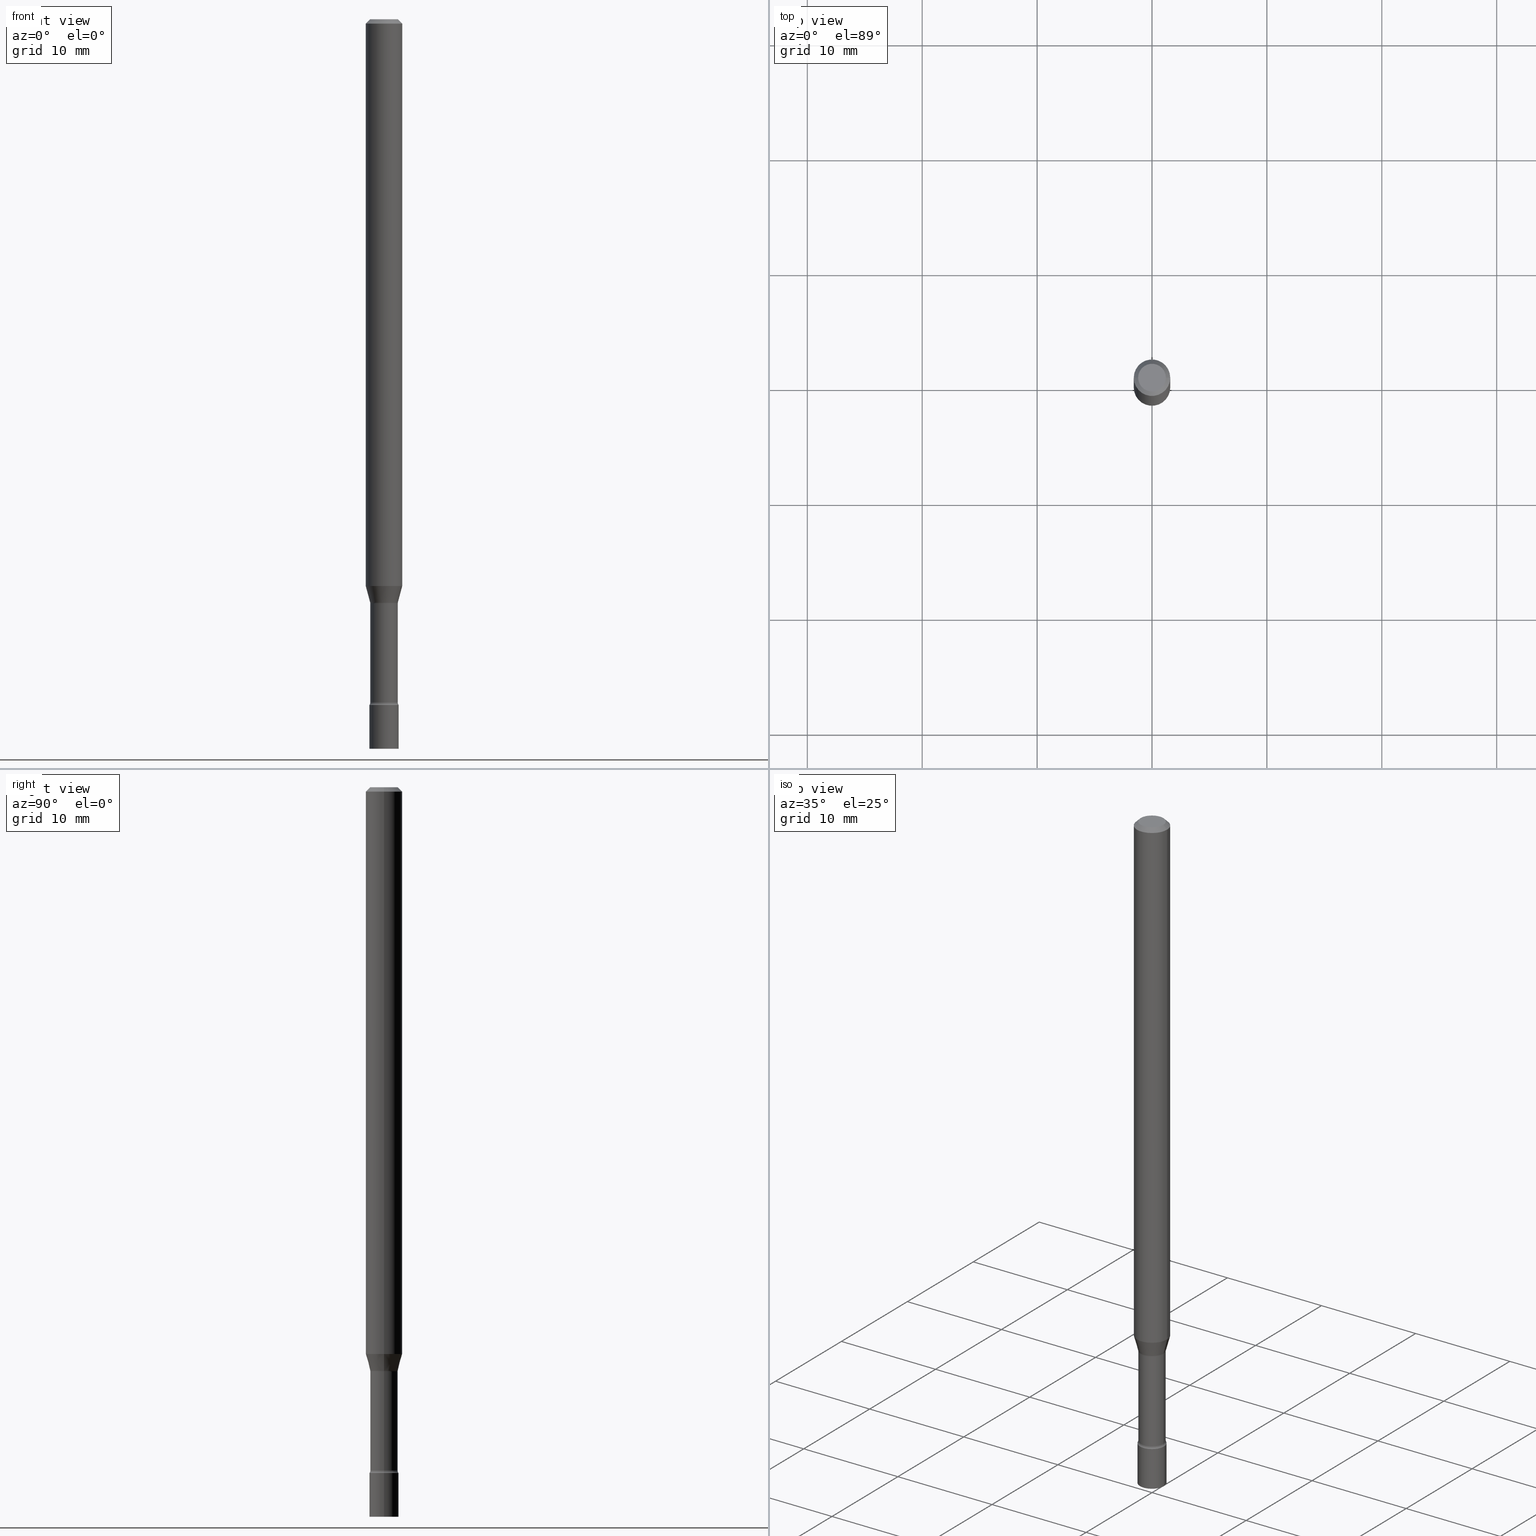
[diagram: canonical four-view strip — front | top / right | iso, engineering-drawing reading convention]
A machine part, canonical four-view strip (front | top / right | iso — engineering-drawing reading convention). The complete STEP part file that produces these views, byte-faithful:
ISO-10303-21;
HEADER;
FILE_DESCRIPTION (( 'STEP AP203' ),
    '1' );
FILE_NAME ('09761.STEP',
    '2024-03-09T01:47:23',
    ( '' ),
    ( '' ),
    'SwSTEP 2.0',
    'SolidWorks 2023',
    '' );
FILE_SCHEMA (( 'CONFIG_CONTROL_DESIGN' ));
ENDSEC;

DATA;
#1 = DIRECTION ( 'NONE',  ( -2.445468806185136597E-29, 3.491481338843145583E-15, 1.000000000000000000 ) ) ;
#2 = EDGE_LOOP ( 'NONE', ( #295, #379, #71, #81 ) ) ;
#3 = PRODUCT_DEFINITION_SHAPE ( 'NONE', 'NONE',  #40 ) ;
#4 = DIRECTION ( 'NONE',  ( 1.000000000000000000, -6.982962677686269866E-15, 0.000000000000000000 ) ) ;
#5 = ORIENTED_EDGE ( 'NONE', *, *, #508, .T. ) ;
#6 = ADVANCED_FACE ( 'NONE', ( #167 ), #199, .T. ) ;
#7 = CIRCLE ( 'NONE', #293, 0.05000000000000000278 ) ;
#8 = PRODUCT_DEFINITION_FORMATION_WITH_SPECIFIED_SOURCE ( 'ANY', '', #252, .NOT_KNOWN. ) ;
#9 = CARTESIAN_POINT ( 'NONE',  ( -0.04749999999999999362, 3.578768372314209027E-16, -2.891391092787141902E-17 ) ) ;
#10 = ORIENTED_EDGE ( 'NONE', *, *, #79, .F. ) ;
#11 = PERSON_AND_ORGANIZATION_ROLE ( 'creator' ) ;
#12 = DIRECTION ( 'NONE',  ( 0.2588190451025211281, 1.565188264969622954E-15, 0.9659258262890679791 ) ) ;
#13 = CARTESIAN_POINT ( 'NONE',  ( 4.895766893511868006E-29, -6.989857611264368100E-15, -2.001974787463811190 ) ) ;
#14 = CARTESIAN_POINT ( 'NONE',  ( 0.06250000000000000000, -7.217426865912943982E-15, -1.942153212482682578 ) ) ;
#15 = APPROVAL_DATE_TIME ( #497, #324 ) ;
#16 = EDGE_CURVE ( 'NONE', #489, #515, #391, .T. ) ;
#17 = DIRECTION ( 'NONE',  ( 1.000000000000000000, -6.982962677686269866E-15, 0.000000000000000000 ) ) ;
#18 = APPROVAL_ROLE ( '' ) ;
#19 = DIRECTION ( 'NONE',  ( 2.445468806185136597E-29, -3.491481338843145583E-15, -1.000000000000000000 ) ) ;
#20 = DIRECTION ( 'NONE',  ( 1.000000000000000000, -6.982962677686262766E-15, 0.000000000000000000 ) ) ;
#21 = ORIENTED_EDGE ( 'NONE', *, *, #203, .F. ) ;
#22 = ADVANCED_FACE ( 'NONE', ( #414 ), #274, .T. ) ;
#23 = DATE_TIME_ROLE ( 'classification_date' ) ;
#24 = CLOSED_SHELL ( 'NONE', ( #238, #60, #356, #185, #132, #162, #22, #478, #6, #109, #95, #140, #372, #428 ) ) ;
#25 = DIRECTION ( 'NONE',  ( -1.000000000000000000, 7.105427357600974249E-15, 0.000000000000000000 ) ) ;
#26 = DIRECTION ( 'NONE',  ( 1.000000000000000000, -6.982962677686274599E-15, 0.000000000000000000 ) ) ;
#27 = CARTESIAN_POINT ( 'NONE',  ( 0.05000000000000000278, -8.554129280165705119E-15, -2.349999999999999645 ) ) ;
#28 = PERSON_AND_ORGANIZATION_ROLE ( 'design_supplier' ) ;
#29 = DIRECTION ( 'NONE',  ( 1.000000000000000000, -6.982962677686267499E-15, 4.883557194083112901E-29 ) ) ;
#30 = AXIS2_PLACEMENT_3D ( 'NONE', #351, #263, #479 ) ;
#31 = CC_DESIGN_DATE_AND_TIME_ASSIGNMENT ( #168, #160, ( #40 ) ) ;
#32 = VERTEX_POINT ( 'NONE', #374 ) ;
#33 = DIRECTION ( 'NONE',  ( 7.105427357601001859E-15, 1.000000000000000000, -3.491481338843145583E-15 ) ) ;
#34 = ORIENTED_EDGE ( 'NONE', *, *, #73, .T. ) ;
#35 = DIRECTION ( 'NONE',  ( 1.000000000000000000, -6.982962677686266711E-15, 4.876176775795936353E-29 ) ) ;
#36 = EDGE_CURVE ( 'NONE', #32, #397, #54, .T. ) ;
#37 = FACE_OUTER_BOUND ( 'NONE', #178, .T. ) ;
#38 = AXIS2_PLACEMENT_3D ( 'NONE', #59, #288, #290 ) ;
#39 = AXIS2_PLACEMENT_3D ( 'NONE', #94, #204, #201 ) ;
#40 = PRODUCT_DEFINITION ( 'UNKNOWN', '', #8, #311 ) ;
#41 = CARTESIAN_POINT ( 'NONE',  ( -0.06250000000000000000, 3.840629472727443437E-16, -0.01500000000000003067 ) ) ;
#42 = DIRECTION ( 'NONE',  ( -6.982962677686266711E-15, -1.000000000000000000, 3.491481338843145583E-15 ) ) ;
#43 = ORIENTED_EDGE ( 'NONE', *, *, #459, .T. ) ;
#44 = CARTESIAN_POINT ( 'NONE',  ( 0.000000000000000000, 0.000000000000000000, 0.000000000000000000 ) ) ;
#45 = ORIENTED_EDGE ( 'NONE', *, *, #396, .T. ) ;
#46 = EDGE_CURVE ( 'NONE', #107, #489, #165, .T. ) ;
#47 = VECTOR ( 'NONE', #57, 39.37007874015748143 ) ;
#48 = AXIS2_PLACEMENT_3D ( 'NONE', #233, #42, #269 ) ;
#49 = PERSON_AND_ORGANIZATION_ROLE ( 'design_owner' ) ;
#50 = CARTESIAN_POINT ( 'NONE',  ( 0.05000000000000000278, -3.491481338843133848E-16, 2.438088387897968247E-30 ) ) ;
#51 = DIRECTION ( 'NONE',  ( -2.445468806185136597E-29, 3.491481338843145583E-15, 1.000000000000000000 ) ) ;
#52 = APPROVAL ( #127, 'UNSPECIFIED' ) ;
#53 = DIRECTION ( 'NONE',  ( 1.000000000000000000, -6.982962677686266711E-15, 4.876176775795936353E-29 ) ) ;
#54 = CIRCLE ( 'NONE', #345, 0.04699999999999998623 ) ;
#55 = CIRCLE ( 'NONE', #183, 0.01500000000000003587 ) ;
#56 = PERSON_AND_ORGANIZATION ( #462, #504 ) ;
#57 = DIRECTION ( 'NONE',  ( -2.445468806185136877E-29, 3.491481338843145188E-15, 1.000000000000000000 ) ) ;
#58 = CARTESIAN_POINT ( 'NONE',  ( 0.04700000000000000705, -7.318056857115623393E-15, -2.001974787463811190 ) ) ;
#59 = CARTESIAN_POINT ( 'NONE',  ( 3.316907271900976096E-16, 0.04749999999999999362, -1.803023190589839165E-16 ) ) ;
#60 = ADVANCED_FACE ( 'NONE', ( #131 ), #205, .T. ) ;
#61 = FACE_OUTER_BOUND ( 'NONE', #186, .T. ) ;
#62 = ORIENTED_EDGE ( 'NONE', *, *, #344, .F. ) ;
#63 = AXIS2_PLACEMENT_3D ( 'NONE', #328, #98, #247 ) ;
#64 = TOROIDAL_SURFACE ( 'NONE', #347, 0.06200000000000002037, 0.01500000000000003587 ) ;
#65 = CARTESIAN_POINT ( 'NONE',  ( 4.749475097958653364E-29, -6.780991698557552312E-15, -1.942153212482682578 ) ) ;
#66 = CARTESIAN_POINT ( 'NONE',  ( 0.04699999999999999317, -3.281992458512545038E-16, 2.291803084624089879E-30 ) ) ;
#67 = CARTESIAN_POINT ( 'NONE',  ( -0.04751111260566398542, -6.638715923974332389E-15, -1.998092501787273045 ) ) ;
#68 = EDGE_LOOP ( 'NONE', ( #253, #306, #342, #5 ) ) ;
#69 = CARTESIAN_POINT ( 'NONE',  ( 0.000000000000000000, 0.000000000000000000, 0.000000000000000000 ) ) ;
#70 = CIRCLE ( 'NONE', #93, 0.04700000000000000705 ) ;
#71 = ORIENTED_EDGE ( 'NONE', *, *, #344, .T. ) ;
#72 = DIRECTION ( 'NONE',  ( 1.000000000000000000, -6.982962677686269866E-15, 0.000000000000000000 ) ) ;
#73 = EDGE_CURVE ( 'NONE', #196, #320, #251, .T. ) ;
#74 = DIRECTION ( 'NONE',  ( -2.445468806185136597E-29, 3.491481338843145583E-15, 1.000000000000000000 ) ) ;
#75 = EDGE_CURVE ( 'NONE', #267, #135, #421, .T. ) ;
#76 = DIRECTION ( 'NONE',  ( -2.445468806185136597E-29, 3.491481338843145583E-15, 1.000000000000000000 ) ) ;
#77 = AXIS2_PLACEMENT_3D ( 'NONE', #164, #244, #377 ) ;
#78 = AXIS2_PLACEMENT_3D ( 'NONE', #44, #74, #35 ) ;
#79 = EDGE_CURVE ( 'NONE', #135, #105, #498, .T. ) ;
#80 = DIRECTION ( 'NONE',  ( 1.000000000000000000, -6.982962677686266711E-15, 4.876176775795935793E-29 ) ) ;
#81 = ORIENTED_EDGE ( 'NONE', *, *, #203, .T. ) ;
#82 = DIRECTION ( 'NONE',  ( -2.445468806185136597E-29, 3.491481338843145583E-15, 1.000000000000000000 ) ) ;
#83 = EDGE_LOOP ( 'NONE', ( #468, #43, #411, #10 ) ) ;
#84 = ORIENTED_EDGE ( 'NONE', *, *, #436, .F. ) ;
#85 = CIRCLE ( 'NONE', #190, 0.05000000000000000278 ) ;
#86 = CC_DESIGN_APPROVAL ( #324, ( #40 ) ) ;
#87 = CALENDAR_DATE ( 2024, 8, 3 ) ;
#88 = CARTESIAN_POINT ( 'NONE',  ( 0.000000000000000000, 0.000000000000000000, 0.000000000000000000 ) ) ;
#89 = CALENDAR_DATE ( 2024, 8, 3 ) ;
#90 = CARTESIAN_POINT ( 'NONE',  ( 0.04751111260566398542, -7.308071009373380431E-15, -1.998092501787273045 ) ) ;
#91 = DIRECTION ( 'NONE',  ( 0.000000000000000000, 0.000000000000000000, 1.000000000000000000 ) ) ;
#92 = DIRECTION ( 'NONE',  ( -2.445468806185136877E-29, 3.491481338843145188E-15, 1.000000000000000000 ) ) ;
#93 = AXIS2_PLACEMENT_3D ( 'NONE', #13, #250, #212 ) ;
#94 = CARTESIAN_POINT ( 'NONE',  ( 3.668203209277712094E-31, -5.237222008264728876E-17, -0.01500000000000003067 ) ) ;
#95 = ADVANCED_FACE ( 'NONE', ( #128 ), #325, .F. ) ;
#96 = PLANE ( 'NONE',  #38 ) ;
#97 = ORIENTED_EDGE ( 'NONE', *, *, #473, .F. ) ;
#98 = DIRECTION ( 'NONE',  ( 7.105427357601001859E-15, 1.000000000000000000, -3.491481338843145583E-15 ) ) ;
#99 = ORIENTED_EDGE ( 'NONE', *, *, #473, .T. ) ;
#100 = CALENDAR_DATE ( 2024, 8, 3 ) ;
#101 = CIRCLE ( 'NONE', #316, 0.01500000000000003587 ) ;
#102 = DIRECTION ( 'NONE',  ( -2.445468806185136597E-29, 3.491481338843145583E-15, 1.000000000000000000 ) ) ;
#103 = EDGE_CURVE ( 'NONE', #366, #196, #502, .T. ) ;
#104 = CARTESIAN_POINT ( 'NONE',  ( -0.05000000000000000278, 3.552713678800501127E-16, -2.459467545127453311E-30 ) ) ;
#105 = VERTEX_POINT ( 'NONE', #382 ) ;
#106 = DIRECTION ( 'NONE',  ( -1.000000000000000000, 6.982962677686266711E-15, 0.000000000000000000 ) ) ;
#107 = VERTEX_POINT ( 'NONE', #322 ) ;
#108 = AXIS2_PLACEMENT_3D ( 'NONE', #264, #102, #301 ) ;
#109 = ADVANCED_FACE ( 'NONE', ( #332 ), #96, .F. ) ;
#110 = DIRECTION ( 'NONE',  ( 2.445468806185136597E-29, -3.491481338843145583E-15, -1.000000000000000000 ) ) ;
#111 = TOROIDAL_SURFACE ( 'NONE', #268, 0.06200000000000000649, 0.01500000000000002720 ) ;
#112 = LOCAL_TIME ( 20, 47, 23.00000000000000000, #373 ) ;
#113 = CARTESIAN_POINT ( 'NONE',  ( 0.04699999999999998623, -8.501757060083058435E-15, -2.341000000000000192 ) ) ;
#114 = CARTESIAN_POINT ( 'NONE',  ( 0.000000000000000000, 0.000000000000000000, 0.000000000000000000 ) ) ;
#115 = ORIENTED_EDGE ( 'NONE', *, *, #272, .T. ) ;
#116 = VECTOR ( 'NONE', #92, 39.37007874015748143 ) ;
#117 = LOCAL_TIME ( 20, 47, 23.00000000000000000, #463 ) ;
#118 = DIRECTION ( 'NONE',  ( -0.7071067811865475727, 2.468850131082257455E-15, -0.7071067811865474617 ) ) ;
#119 = ORIENTED_EDGE ( 'NONE', *, *, #455, .F. ) ;
#120 = ORIENTED_EDGE ( 'NONE', *, *, #148, .T. ) ;
#121 = EDGE_CURVE ( 'NONE', #32, #489, #457, .T. ) ;
#122 = ORIENTED_EDGE ( 'NONE', *, *, #455, .T. ) ;
#123 = AXIS2_PLACEMENT_3D ( 'NONE', #130, #245, #291 ) ;
#124 = APPLICATION_PROTOCOL_DEFINITION ( 'international standard', 'config_control_design', 1994, #129 ) ;
#125 = DIRECTION ( 'NONE',  ( -2.445468806185136877E-29, 3.491481338843145188E-15, 1.000000000000000000 ) ) ;
#126 = CC_DESIGN_PERSON_AND_ORGANIZATION_ASSIGNMENT ( #329, #49, ( #252 ) ) ;
#127 = APPROVAL_STATUS ( 'not_yet_approved' ) ;
#128 = FACE_OUTER_BOUND ( 'NONE', #475, .T. ) ;
#129 = APPLICATION_CONTEXT ( 'configuration controlled 3d designs of mechanical parts and assemblies' ) ;
#130 = CARTESIAN_POINT ( 'NONE',  ( 5.724842475279404612E-29, -8.173557814231803142E-15, -2.341000000000000192 ) ) ;
#131 = FACE_OUTER_BOUND ( 'NONE', #175, .T. ) ;
#132 = ADVANCED_FACE ( 'NONE', ( #493 ), #454, .T. ) ;
#133 = AXIS2_PLACEMENT_3D ( 'NONE', #519, #364, #4 ) ;
#134 = ORIENTED_EDGE ( 'NONE', *, *, #436, .T. ) ;
#135 = VERTEX_POINT ( 'NONE', #14 ) ;
#136 = FACE_OUTER_BOUND ( 'NONE', #153, .T. ) ;
#137 = ORIENTED_EDGE ( 'NONE', *, *, #459, .F. ) ;
#138 = CALENDAR_DATE ( 2024, 8, 3 ) ;
#139 = DIRECTION ( 'NONE',  ( 2.438088387897960049E-29, -3.491481338843145188E-15, -1.000000000000000000 ) ) ;
#140 = ADVANCED_FACE ( 'NONE', ( #456 ), #451, .F. ) ;
#141 = CONICAL_SURFACE ( 'NONE', #108, 0.04751111260566398542, 0.2617993877991498519 ) ;
#142 = CIRCLE ( 'NONE', #192, 0.06250000000000000000 ) ;
#143 = DIRECTION ( 'NONE',  ( 1.000000000000000000, -6.982962677686267499E-15, 4.876176775795936353E-29 ) ) ;
#144 = ORIENTED_EDGE ( 'NONE', *, *, #36, .T. ) ;
#145 = DIRECTION ( 'NONE',  ( -2.445468806185136597E-29, 3.491481338843145583E-15, 1.000000000000000000 ) ) ;
#146 = ORIENTED_EDGE ( 'NONE', *, *, #298, .F. ) ;
#147 = DIRECTION ( 'NONE',  ( -2.445468806185136597E-29, 3.491481338843145583E-15, 1.000000000000000000 ) ) ;
#148 = EDGE_CURVE ( 'NONE', #366, #477, #390, .T. ) ;
#149 = DIRECTION ( 'NONE',  ( -2.445468806185136877E-29, 3.491481338843145188E-15, 1.000000000000000000 ) ) ;
#150 = CIRCLE ( 'NONE', #39, 0.06250000000000000000 ) ;
#151 = DIRECTION ( 'NONE',  ( -6.982962677686266711E-15, -1.000000000000000000, 3.491481338843145583E-15 ) ) ;
#152 = DIRECTION ( 'NONE',  ( -2.445468806185136597E-29, 3.491481338843145583E-15, 1.000000000000000000 ) ) ;
#153 = EDGE_LOOP ( 'NONE', ( #438, #491, #34, #146 ) ) ;
#154 = DIRECTION ( 'NONE',  ( 1.000000000000000000, -6.982962677686265922E-15, 4.876176775795935793E-29 ) ) ;
#155 = EDGE_LOOP ( 'NONE', ( #119, #242 ) ) ;
#156 = AXIS2_PLACEMENT_3D ( 'NONE', #88, #51, #371 ) ;
#157 = DIRECTION ( 'NONE',  ( 1.000000000000000000, -6.982962677686267499E-15, 4.883557194083112901E-29 ) ) ;
#158 = ORIENTED_EDGE ( 'NONE', *, *, #337, .T. ) ;
#159 = ADVANCED_FACE ( 'NONE', ( #389 ), #430, .T. ) ;
#160 = DATE_TIME_ROLE ( 'creation_date' ) ;
#161 = CARTESIAN_POINT ( 'NONE',  ( 6.113672015462842613E-29, -8.728703347107864943E-15, -2.500000000000000000 ) ) ;
#162 = ADVANCED_FACE ( 'NONE', ( #61 ), #141, .T. ) ;
#163 = COORDINATED_UNIVERSAL_TIME_OFFSET ( 5, 0, .BEHIND. ) ;
#164 = CARTESIAN_POINT ( 'NONE',  ( 4.886272884993195824E-29, -6.976302683272678303E-15, -1.998092501787273045 ) ) ;
#165 = CIRCLE ( 'NONE', #63, 0.01500000000000001853 ) ;
#166 = CARTESIAN_POINT ( 'NONE',  ( 4.749475097958653364E-29, -6.780991698557552312E-15, -1.942153212482682578 ) ) ;
#167 = FACE_OUTER_BOUND ( 'NONE', #223, .T. ) ;
#168 = DATE_AND_TIME ( #89, #226 ) ;
#169 = CARTESIAN_POINT ( 'NONE',  ( 5.724842475279404612E-29, -8.173557814231803142E-15, -2.341000000000000192 ) ) ;
#170 = DIRECTION ( 'NONE',  ( -2.445468806185136597E-29, 3.491481338843145583E-15, 1.000000000000000000 ) ) ;
#171 = AXIS2_PLACEMENT_3D ( 'NONE', #174, #147, #470 ) ;
#172 = ORIENTED_EDGE ( 'NONE', *, *, #46, .T. ) ;
#173 = CIRCLE ( 'NONE', #133, 0.04751111260566398542 ) ;
#174 = CARTESIAN_POINT ( 'NONE',  ( 5.724842475279403491E-29, -8.173557814231803142E-15, -2.340999999999999748 ) ) ;
#175 = EDGE_LOOP ( 'NONE', ( #434, #361, #300, #336 ) ) ;
#176 = PERSON_AND_ORGANIZATION ( #462, #504 ) ;
#177 = DIRECTION ( 'NONE',  ( 1.000000000000000000, -6.982962677686267499E-15, 4.876176775795936353E-29 ) ) ;
#178 = EDGE_LOOP ( 'NONE', ( #450, #158, #99, #62 ) ) ;
#179 = DIRECTION ( 'NONE',  ( 1.000000000000000000, -6.982962677686262766E-15, 0.000000000000000000 ) ) ;
#180 = ORIENTED_EDGE ( 'NONE', *, *, #492, .F. ) ;
#181 = PERSON_AND_ORGANIZATION ( #462, #504 ) ;
#182 = CLOSED_SHELL ( 'NONE', ( #159, #388, #278, #331 ) ) ;
#183 = AXIS2_PLACEMENT_3D ( 'NONE', #511, #33, #25 ) ;
#184 = CARTESIAN_POINT ( 'NONE',  ( 0.05000000000000003053, -8.554129280165705119E-15, -2.349999999999999645 ) ) ;
#185 = ADVANCED_FACE ( 'NONE', ( #299 ), #486, .T. ) ;
#186 = EDGE_LOOP ( 'NONE', ( #392, #115, #507, #424 ) ) ;
#187 = DIRECTION ( 'NONE',  ( -2.445468806185136597E-29, 3.491481338843145583E-15, 1.000000000000000000 ) ) ;
#188 = CC_DESIGN_PERSON_AND_ORGANIZATION_ASSIGNMENT ( #181, #435, ( #512 ) ) ;
#189 = CARTESIAN_POINT ( 'NONE',  ( 6.113672015462842613E-29, -8.728703347107864943E-15, -2.500000000000000000 ) ) ;
#190 = AXIS2_PLACEMENT_3D ( 'NONE', #341, #221, #26 ) ;
#191 = CARTESIAN_POINT ( 'NONE',  ( -0.06250000000000000000, 4.440892098500626162E-16, -3.074334431409316114E-30 ) ) ;
#192 = AXIS2_PLACEMENT_3D ( 'NONE', #166, #282, #20 ) ;
#193 = DIRECTION ( 'NONE',  ( 1.000000000000000000, -6.982962677686266711E-15, 0.000000000000000000 ) ) ;
#194 = ORIENTED_EDGE ( 'NONE', *, *, #219, .F. ) ;
#195 = CARTESIAN_POINT ( 'NONE',  ( -0.05000000000000000278, -8.111570878814577955E-15, -2.500000000000000000 ) ) ;
#196 = VERTEX_POINT ( 'NONE', #343 ) ;
#197 = CARTESIAN_POINT ( 'NONE',  ( -0.06250000000000000000, -2.972592749470037277E-15, -0.01500000000000003067 ) ) ;
#198 = ORIENTED_EDGE ( 'NONE', *, *, #378, .T. ) ;
#199 = CONICAL_SURFACE ( 'NONE', #518, 0.06250000000000000000, 0.7853981633974483900 ) ;
#200 =( GEOMETRIC_REPRESENTATION_CONTEXT ( 3 ) GLOBAL_UNCERTAINTY_ASSIGNED_CONTEXT ( ( #520 ) ) GLOBAL_UNIT_ASSIGNED_CONTEXT ( ( #500, #381, #496 ) ) REPRESENTATION_CONTEXT ( 'NONE', 'WORKASPACE' ) );
#201 = DIRECTION ( 'NONE',  ( 1.000000000000000000, -6.982962677686266711E-15, 0.000000000000000000 ) ) ;
#202 = CARTESIAN_POINT ( 'NONE',  ( 0.000000000000000000, 0.000000000000000000, 0.000000000000000000 ) ) ;
#203 = EDGE_CURVE ( 'NONE', #283, #446, #443, .T. ) ;
#204 = DIRECTION ( 'NONE',  ( -2.445468806185136597E-29, 3.491481338843145583E-15, 1.000000000000000000 ) ) ;
#205 = CYLINDRICAL_SURFACE ( 'NONE', #471, 0.04699999999999999317 ) ;
#206 =( LENGTH_UNIT ( ) NAMED_UNIT ( * ) SI_UNIT ( $, .METRE. ) );
#207 = CARTESIAN_POINT ( 'NONE',  ( 0.06250000000000000000, -4.364351673553916694E-16, 3.047610484872459871E-30 ) ) ;
#208 = AXIS2_PLACEMENT_3D ( 'NONE', #255, #292, #460 ) ;
#209 = CC_DESIGN_PERSON_AND_ORGANIZATION_ASSIGNMENT ( #224, #28, ( #8 ) ) ;
#210 = DIRECTION ( 'NONE',  ( 1.000000000000000000, -6.982962677686274599E-15, 0.000000000000000000 ) ) ;
#211 = EDGE_LOOP ( 'NONE', ( #350, #172, #304, #513 ) ) ;
#212 = DIRECTION ( 'NONE',  ( 1.000000000000000000, -6.982962677686269866E-15, 0.000000000000000000 ) ) ;
#213 = ORIENTED_EDGE ( 'NONE', *, *, #318, .F. ) ;
#214 = DIRECTION ( 'NONE',  ( -2.445468806185136597E-29, 3.491481338843145583E-15, 1.000000000000000000 ) ) ;
#215 = VECTOR ( 'NONE', #12, 39.37007874015748854 ) ;
#216 = ORIENTED_EDGE ( 'NONE', *, *, #298, .T. ) ;
#217 = VECTOR ( 'NONE', #118, 39.37007874015748143 ) ;
#218 = DIRECTION ( 'NONE',  ( 1.000000000000000000, -6.982962677686274599E-15, 0.000000000000000000 ) ) ;
#219 = EDGE_CURVE ( 'NONE', #286, #405, #248, .T. ) ;
#220 = SHAPE_DEFINITION_REPRESENTATION ( #3, #258 ) ;
#221 = DIRECTION ( 'NONE',  ( -2.445468806185136597E-29, 3.491481338843145583E-15, 1.000000000000000000 ) ) ;
#222 = DIRECTION ( 'NONE',  ( -2.445468806185136597E-29, 3.491481338843145583E-15, 1.000000000000000000 ) ) ;
#223 = EDGE_LOOP ( 'NONE', ( #317, #84, #198, #265 ) ) ;
#224 = PERSON_AND_ORGANIZATION ( #462, #504 ) ;
#225 = AXIS2_PLACEMENT_3D ( 'NONE', #69, #222, #143 ) ;
#226 = LOCAL_TIME ( 20, 47, 23.00000000000000000, #163 ) ;
#227 = DIRECTION ( 'NONE',  ( -2.445468806185136597E-29, 3.491481338843145583E-15, 1.000000000000000000 ) ) ;
#228 = EDGE_LOOP ( 'NONE', ( #194, #45, #418, #246 ) ) ;
#229 = FACE_OUTER_BOUND ( 'NONE', #422, .T. ) ;
#230 = DIRECTION ( 'NONE',  ( 1.000000000000000000, -6.982962677686251722E-15, 0.000000000000000000 ) ) ;
#231 = CC_DESIGN_PERSON_AND_ORGANIZATION_ASSIGNMENT ( #176, #429, ( #8 ) ) ;
#232 = AXIS2_PLACEMENT_3D ( 'NONE', #307, #110, #106 ) ;
#233 = CARTESIAN_POINT ( 'NONE',  ( 0.06200000000000000649, -7.422801297280916762E-15, -2.001974787463811190 ) ) ;
#234 = LOCAL_TIME ( 20, 47, 23.00000000000000000, #340 ) ;
#235 = CYLINDRICAL_SURFACE ( 'NONE', #78, 0.04699999999999999317 ) ;
#236 = ORIENTED_EDGE ( 'NONE', *, *, #16, .F. ) ;
#237 = DIRECTION ( 'NONE',  ( -2.438088387897960049E-29, 3.491481338843145188E-15, 1.000000000000000000 ) ) ;
#238 = ADVANCED_FACE ( 'NONE', ( #425 ), #480, .F. ) ;
#239 = ORIENTED_EDGE ( 'NONE', *, *, #75, .T. ) ;
#240 = CARTESIAN_POINT ( 'NONE',  ( 0.000000000000000000, 0.000000000000000000, 0.000000000000000000 ) ) ;
#241 = AXIS2_PLACEMENT_3D ( 'NONE', #514, #145, #29 ) ;
#242 = ORIENTED_EDGE ( 'NONE', *, *, #103, .F. ) ;
#243 = DATE_AND_TIME ( #453, #439 ) ;
#244 = DIRECTION ( 'NONE',  ( -2.445468806185136597E-29, 3.491481338843145583E-15, 1.000000000000000000 ) ) ;
#245 = DIRECTION ( 'NONE',  ( -2.445468806185136597E-29, 3.491481338843145583E-15, 1.000000000000000000 ) ) ;
#246 = ORIENTED_EDGE ( 'NONE', *, *, #378, .F. ) ;
#247 = DIRECTION ( 'NONE',  ( -1.000000000000000000, 7.105427357600982137E-15, 0.000000000000000000 ) ) ;
#248 = CIRCLE ( 'NONE', #30, 0.04749999999999999362 ) ;
#249 = CIRCLE ( 'NONE', #123, 0.04699999999999998623 ) ;
#250 = DIRECTION ( 'NONE',  ( -2.445468806185136597E-29, 3.491481338843145583E-15, 1.000000000000000000 ) ) ;
#251 = LINE ( 'NONE', #50, #47 ) ;
#252 = PRODUCT ( '09761', '09761', '', ( #449 ) ) ;
#253 = ORIENTED_EDGE ( 'NONE', *, *, #46, .F. ) ;
#254 = DATE_AND_TIME ( #100, #234 ) ;
#255 = CARTESIAN_POINT ( 'NONE',  ( 3.491481338843707252E-16, 0.04999999999999180100, -2.350000000000000089 ) ) ;
#256 = EDGE_CURVE ( 'NONE', #135, #346, #314, .T. ) ;
#257 = FACE_OUTER_BOUND ( 'NONE', #155, .T. ) ;
#258 = ADVANCED_BREP_SHAPE_REPRESENTATION ( '09761', ( #271, #273, #401 ), #200 ) ;
#259 = AXIS2_PLACEMENT_3D ( 'NONE', #161, #413, #210 ) ;
#260 = ORIENTED_EDGE ( 'NONE', *, *, #310, .T. ) ;
#261 = AXIS2_PLACEMENT_3D ( 'NONE', #441, #152, #312 ) ;
#262 = APPROVAL_DATE_TIME ( #466, #420 ) ;
#263 = DIRECTION ( 'NONE',  ( -2.445468806185136597E-29, 3.491481338843145583E-15, 1.000000000000000000 ) ) ;
#264 = CARTESIAN_POINT ( 'NONE',  ( 4.886272884993195824E-29, -6.976302683272678303E-15, -1.998092501787273045 ) ) ;
#265 = ORIENTED_EDGE ( 'NONE', *, *, #492, .T. ) ;
#266 = DIRECTION ( 'NONE',  ( -0.2588190451025211281, 5.211531920934547886E-15, 0.9659258262890679791 ) ) ;
#267 = VERTEX_POINT ( 'NONE', #516 ) ;
#268 = AXIS2_PLACEMENT_3D ( 'NONE', #447, #82, #157 ) ;
#269 = DIRECTION ( 'NONE',  ( 1.000000000000000000, -6.982962677686259611E-15, 0.000000000000000000 ) ) ;
#270 = CYLINDRICAL_SURFACE ( 'NONE', #472, 0.06250000000000000000 ) ;
#271 = MANIFOLD_SOLID_BREP ( 'Body-Move/Copy2[1]', #182 ) ;
#272 = EDGE_CURVE ( 'NONE', #107, #346, #433, .T. ) ;
#273 = MANIFOLD_SOLID_BREP ( 'Body-Move/Copy2[2]', #24 ) ;
#274 = CONICAL_SURFACE ( 'NONE', #77, 0.04751111260566398542, 0.2617993877991498519 ) ;
#275 = DIRECTION ( 'NONE',  ( -2.445468806185136597E-29, 3.491481338843145583E-15, 1.000000000000000000 ) ) ;
#276 = CIRCLE ( 'NONE', #495, 0.04749999999999999362 ) ;
#277 = EDGE_LOOP ( 'NONE', ( #280, #313, #239, #465 ) ) ;
#278 = ADVANCED_FACE ( 'NONE', ( #136 ), #423, .T. ) ;
#279 = LINE ( 'NONE', #191, #326 ) ;
#280 = ORIENTED_EDGE ( 'NONE', *, *, #272, .F. ) ;
#281 = PRODUCT_RELATED_PRODUCT_CATEGORY ( 'detail', '', ( #252 ) ) ;
#282 = DIRECTION ( 'NONE',  ( -2.445468806185136597E-29, 3.491481338843145583E-15, 1.000000000000000000 ) ) ;
#283 = VERTEX_POINT ( 'NONE', #184 ) ;
#284 = PERSON_AND_ORGANIZATION ( #462, #504 ) ;
#285 = AXIS2_PLACEMENT_3D ( 'NONE', #368, #170, #17 ) ;
#286 = VERTEX_POINT ( 'NONE', #395 ) ;
#287 = CIRCLE ( 'NONE', #261, 0.05000000000000000278 ) ;
#288 = DIRECTION ( 'NONE',  ( 2.438088387897960049E-29, -3.491481338843145188E-15, -1.000000000000000000 ) ) ;
#289 = APPROVAL_ROLE ( '' ) ;
#290 = DIRECTION ( 'NONE',  ( -1.000000000000000000, 6.982962677686265922E-15, -4.876176775795935793E-29 ) ) ;
#291 = DIRECTION ( 'NONE',  ( 1.000000000000000000, -6.982962677686273021E-15, 0.000000000000000000 ) ) ;
#292 = DIRECTION ( 'NONE',  ( -2.438088387897960049E-29, 3.491481338843145188E-15, 1.000000000000000000 ) ) ;
#293 = AXIS2_PLACEMENT_3D ( 'NONE', #349, #214, #218 ) ;
#294 = CIRCLE ( 'NONE', #355, 0.06250000000000000000 ) ;
#295 = ORIENTED_EDGE ( 'NONE', *, *, #337, .F. ) ;
#296 = DIRECTION ( 'NONE',  ( -1.000000000000000000, 6.982962677686266711E-15, 0.000000000000000000 ) ) ;
#297 = EDGE_LOOP ( 'NONE', ( #134, #505 ) ) ;
#298 = EDGE_CURVE ( 'NONE', #477, #320, #7, .T. ) ;
#299 = FACE_OUTER_BOUND ( 'NONE', #228, .T. ) ;
#300 = ORIENTED_EDGE ( 'NONE', *, *, #508, .F. ) ;
#301 = DIRECTION ( 'NONE',  ( 1.000000000000000000, -6.982962677686269866E-15, 0.000000000000000000 ) ) ;
#302 = AXIS2_PLACEMENT_3D ( 'NONE', #490, #1, #72 ) ;
#303 = DIRECTION ( 'NONE',  ( -2.445468806185136597E-29, 3.491481338843145583E-15, 1.000000000000000000 ) ) ;
#304 = ORIENTED_EDGE ( 'NONE', *, *, #16, .T. ) ;
#305 = DIRECTION ( 'NONE',  ( -1.000000000000000000, 6.982962677686265922E-15, -4.876176775795935793E-29 ) ) ;
#306 = ORIENTED_EDGE ( 'NONE', *, *, #369, .F. ) ;
#307 = CARTESIAN_POINT ( 'NONE',  ( 3.668203209277712094E-31, -5.237222008264728876E-17, -0.01500000000000003067 ) ) ;
#308 = FACE_OUTER_BOUND ( 'NONE', #339, .T. ) ;
#309 = CARTESIAN_POINT ( 'NONE',  ( 5.746851694535070554E-29, -8.204981146281391784E-15, -2.349999999999999645 ) ) ;
#310 = EDGE_CURVE ( 'NONE', #397, #515, #387, .T. ) ;
#311 = DESIGN_CONTEXT ( 'detailed design', #380, 'design' ) ;
#312 = DIRECTION ( 'NONE',  ( 1.000000000000000000, -6.982962677686274599E-15, 0.000000000000000000 ) ) ;
#313 = ORIENTED_EDGE ( 'NONE', *, *, #444, .T. ) ;
#314 = CIRCLE ( 'NONE', #400, 0.06250000000000000000 ) ;
#315 = CARTESIAN_POINT ( 'NONE',  ( 0.06250000000000000000, -4.811533449433680977E-16, -0.01500000000000003067 ) ) ;
#316 = AXIS2_PLACEMENT_3D ( 'NONE', #474, #151, #230 ) ;
#317 = ORIENTED_EDGE ( 'NONE', *, *, #396, .F. ) ;
#318 = EDGE_CURVE ( 'NONE', #320, #477, #85, .T. ) ;
#319 = CARTESIAN_POINT ( 'NONE',  ( 7.070806723891919892E-46, -1.009523804376275404E-31, -2.891391092786900929E-17 ) ) ;
#320 = VERTEX_POINT ( 'NONE', #27 ) ;
#321 = COORDINATED_UNIVERSAL_TIME_OFFSET ( 5, 0, .BEHIND. ) ;
#322 = CARTESIAN_POINT ( 'NONE',  ( -0.04751111260566398542, -6.487809206340911437E-15, -1.998092501787273045 ) ) ;
#323 = VECTOR ( 'NONE', #266, 39.37007874015748854 ) ;
#324 = APPROVAL ( #376, 'UNSPECIFIED' ) ;
#325 = PLANE ( 'NONE',  #208 ) ;
#326 = VECTOR ( 'NONE', #149, 39.37007874015748143 ) ;
#327 = LENGTH_MEASURE_WITH_UNIT ( LENGTH_MEASURE( 0.02539999999999999897 ), #206 );
#328 = CARTESIAN_POINT ( 'NONE',  ( -0.06200000000000000649, -6.549321115093105594E-15, -2.001974787463811190 ) ) ;
#329 = PERSON_AND_ORGANIZATION ( #462, #504 ) ;
#330 = CARTESIAN_POINT ( 'NONE',  ( -0.04699999999999999317, 3.339550858072470388E-16, -2.311899492419805370E-30 ) ) ;
#331 = ADVANCED_FACE ( 'NONE', ( #257 ), #509, .T. ) ;
#332 = FACE_OUTER_BOUND ( 'NONE', #297, .T. ) ;
#333 = AXIS2_PLACEMENT_3D ( 'NONE', #467, #187, #476 ) ;
#334 = VECTOR ( 'NONE', #125, 39.37007874015748143 ) ;
#335 = CIRCLE ( 'NONE', #393, 0.05000000000000000278 ) ;
#336 = ORIENTED_EDGE ( 'NONE', *, *, #310, .F. ) ;
#337 = EDGE_CURVE ( 'NONE', #32, #446, #55, .T. ) ;
#338 = DIRECTION ( 'NONE',  ( -2.445468806185136877E-29, 3.491481338843145188E-15, 1.000000000000000000 ) ) ;
#339 = EDGE_LOOP ( 'NONE', ( #137, #386, #448, #180 ) ) ;
#340 = COORDINATED_UNIVERSAL_TIME_OFFSET ( 5, 0, .BEHIND. ) ;
#341 = CARTESIAN_POINT ( 'NONE',  ( 5.746851694535070554E-29, -8.204981146281391784E-15, -2.349999999999999645 ) ) ;
#342 = ORIENTED_EDGE ( 'NONE', *, *, #352, .T. ) ;
#343 = CARTESIAN_POINT ( 'NONE',  ( 0.05000000000000000278, -9.077851480992178278E-15, -2.500000000000000000 ) ) ;
#344 = EDGE_CURVE ( 'NONE', #397, #283, #101, .T. ) ;
#345 = AXIS2_PLACEMENT_3D ( 'NONE', #169, #464, #501 ) ;
#346 = VERTEX_POINT ( 'NONE', #360 ) ;
#347 = AXIS2_PLACEMENT_3D ( 'NONE', #445, #440, #404 ) ;
#348 = APPROVAL_STATUS ( 'not_yet_approved' ) ;
#349 = CARTESIAN_POINT ( 'NONE',  ( 5.746851694535070554E-29, -8.204981146281391784E-15, -2.349999999999999645 ) ) ;
#350 = ORIENTED_EDGE ( 'NONE', *, *, #444, .F. ) ;
#351 = CARTESIAN_POINT ( 'NONE',  ( 7.070806723891919892E-46, -1.009523804376275404E-31, -2.891391092786900929E-17 ) ) ;
#352 = EDGE_CURVE ( 'NONE', #267, #515, #365, .T. ) ;
#353 = DIRECTION ( 'NONE',  ( -2.445468806185136597E-29, 3.491481338843145583E-15, 1.000000000000000000 ) ) ;
#354 = VECTOR ( 'NONE', #437, 39.37007874015748143 ) ;
#355 = AXIS2_PLACEMENT_3D ( 'NONE', #442, #488, #193 ) ;
#356 = ADVANCED_FACE ( 'NONE', ( #37 ), #64, .F. ) ;
#357 = LINE ( 'NONE', #41, #217 ) ;
#358 = DIRECTION ( 'NONE',  ( 1.000000000000000000, -6.982962677686267499E-15, 4.876681293081646444E-29 ) ) ;
#359 = ORIENTED_EDGE ( 'NONE', *, *, #318, .T. ) ;
#360 = CARTESIAN_POINT ( 'NONE',  ( -0.06250000000000000000, -6.336902488707489696E-15, -1.942153212482682578 ) ) ;
#361 = ORIENTED_EDGE ( 'NONE', *, *, #121, .T. ) ;
#362 = CC_DESIGN_DATE_AND_TIME_ASSIGNMENT ( #254, #23, ( #512 ) ) ;
#363 = VECTOR ( 'NONE', #338, 39.37007874015748143 ) ;
#364 = DIRECTION ( 'NONE',  ( -2.445468806185136597E-29, 3.491481338843145583E-15, 1.000000000000000000 ) ) ;
#365 = CIRCLE ( 'NONE', #48, 0.01500000000000001853 ) ;
#366 = VERTEX_POINT ( 'NONE', #195 ) ;
#367 = PERSON_AND_ORGANIZATION ( #462, #504 ) ;
#368 = CARTESIAN_POINT ( 'NONE',  ( 4.895766893511868006E-29, -6.989857611264368100E-15, -2.001974787463811190 ) ) ;
#369 = EDGE_CURVE ( 'NONE', #267, #107, #173, .T. ) ;
#370 = APPROVAL_DATE_TIME ( #243, #52 ) ;
#371 = DIRECTION ( 'NONE',  ( 1.000000000000000000, -6.982962677686266711E-15, 4.876176775795935793E-29 ) ) ;
#372 = ADVANCED_FACE ( 'NONE', ( #481 ), #235, .T. ) ;
#373 = COORDINATED_UNIVERSAL_TIME_OFFSET ( 5, 0, .BEHIND. ) ;
#374 = CARTESIAN_POINT ( 'NONE',  ( -0.04699999999999998623, -7.844656253412948961E-15, -2.341000000000000192 ) ) ;
#375 = AXIS2_PLACEMENT_3D ( 'NONE', #309, #237, #154 ) ;
#376 = APPROVAL_STATUS ( 'not_yet_approved' ) ;
#377 = DIRECTION ( 'NONE',  ( 1.000000000000000000, -6.982962677686269866E-15, 0.000000000000000000 ) ) ;
#378 = EDGE_CURVE ( 'NONE', #405, #407, #357, .T. ) ;
#379 = ORIENTED_EDGE ( 'NONE', *, *, #499, .F. ) ;
#380 = APPLICATION_CONTEXT ( 'configuration controlled 3d designs of mechanical parts and assemblies' ) ;
#381 =( NAMED_UNIT ( * ) PLANE_ANGLE_UNIT ( ) SI_UNIT ( $, .RADIAN. ) );
#382 = CARTESIAN_POINT ( 'NONE',  ( 0.06250000000000000000, -4.888073874380389458E-16, -0.01500000000000003067 ) ) ;
#383 = CC_DESIGN_PERSON_AND_ORGANIZATION_ASSIGNMENT ( #367, #11, ( #40 ) ) ;
#384 = CARTESIAN_POINT ( 'NONE',  ( 3.491481338843744722E-16, 0.04999999999999128059, -2.500000000000000000 ) ) ;
#385 = APPROVAL_PERSON_ORGANIZATION ( #284, #52, #289 ) ;
#386 = ORIENTED_EDGE ( 'NONE', *, *, #483, .T. ) ;
#387 = LINE ( 'NONE', #66, #363 ) ;
#388 = ADVANCED_FACE ( 'NONE', ( #229 ), #399, .T. ) ;
#389 = FACE_OUTER_BOUND ( 'NONE', #485, .T. ) ;
#390 = LINE ( 'NONE', #104, #354 ) ;
#391 = CIRCLE ( 'NONE', #285, 0.04700000000000000705 ) ;
#392 = ORIENTED_EDGE ( 'NONE', *, *, #369, .T. ) ;
#393 = AXIS2_PLACEMENT_3D ( 'NONE', #189, #353, #517 ) ;
#394 = PERSON_AND_ORGANIZATION ( #462, #504 ) ;
#395 = CARTESIAN_POINT ( 'NONE',  ( 0.04749999999999999362, -4.035134999187579609E-16, -2.891391092786643933E-17 ) ) ;
#396 = EDGE_CURVE ( 'NONE', #286, #105, #482, .T. ) ;
#397 = VERTEX_POINT ( 'NONE', #113 ) ;
#398 = CARTESIAN_POINT ( 'NONE',  ( -0.05000000000000003053, -7.849709778401341375E-15, -2.349999999999999645 ) ) ;
#399 = PLANE ( 'NONE',  #375 ) ;
#400 = AXIS2_PLACEMENT_3D ( 'NONE', #65, #303, #179 ) ;
#401 = AXIS2_PLACEMENT_3D ( 'NONE', #240, #91, #409 ) ;
#402 = DIRECTION ( 'NONE',  ( 0.7071067811865475727, -7.319954787623256045E-15, -0.7071067811865474617 ) ) ;
#403 = EDGE_CURVE ( 'NONE', #105, #407, #294, .T. ) ;
#404 = DIRECTION ( 'NONE',  ( 1.000000000000000000, -6.982962677686264344E-15, 4.883557194083111780E-29 ) ) ;
#405 = VERTEX_POINT ( 'NONE', #9 ) ;
#406 = FACE_OUTER_BOUND ( 'NONE', #68, .T. ) ;
#407 = VERTEX_POINT ( 'NONE', #197 ) ;
#408 = CC_DESIGN_SECURITY_CLASSIFICATION ( #512, ( #8 ) ) ;
#409 = DIRECTION ( 'NONE',  ( 1.000000000000000000, 0.000000000000000000, 0.000000000000000000 ) ) ;
#410 = CC_DESIGN_APPROVAL ( #420, ( #512 ) ) ;
#411 = ORIENTED_EDGE ( 'NONE', *, *, #403, .F. ) ;
#412 = DIMENSIONAL_EXPONENTS ( 1.000000000000000000, 0.000000000000000000, 0.000000000000000000, 0.000000000000000000, 0.000000000000000000, 0.000000000000000000, 0.000000000000000000 ) ;
#413 = DIRECTION ( 'NONE',  ( -2.445468806185136597E-29, 3.491481338843145583E-15, 1.000000000000000000 ) ) ;
#414 = FACE_OUTER_BOUND ( 'NONE', #277, .T. ) ;
#415 = APPLICATION_PROTOCOL_DEFINITION ( 'international standard', 'config_control_design', 1994, #380 ) ;
#416 = CARTESIAN_POINT ( 'NONE',  ( 3.668203209277712094E-31, -5.237222008264728876E-17, -0.01500000000000003067 ) ) ;
#417 = VECTOR ( 'NONE', #402, 39.37007874015748143 ) ;
#418 = ORIENTED_EDGE ( 'NONE', *, *, #403, .T. ) ;
#419 = CARTESIAN_POINT ( 'NONE',  ( -0.04700000000000000705, -7.247752626940839815E-15, -2.001974787463811190 ) ) ;
#420 = APPROVAL ( #348, 'UNSPECIFIED' ) ;
#421 = LINE ( 'NONE', #90, #215 ) ;
#422 = EDGE_LOOP ( 'NONE', ( #359, #216 ) ) ;
#423 = CYLINDRICAL_SURFACE ( 'NONE', #225, 0.05000000000000000278 ) ;
#424 = ORIENTED_EDGE ( 'NONE', *, *, #75, .F. ) ;
#425 = FACE_OUTER_BOUND ( 'NONE', #211, .T. ) ;
#426 = AXIS2_PLACEMENT_3D ( 'NONE', #506, #227, #177 ) ;
#427 = APPROVAL_PERSON_ORGANIZATION ( #394, #420, #432 ) ;
#428 = ADVANCED_FACE ( 'NONE', ( #406 ), #111, .F. ) ;
#429 = PERSON_AND_ORGANIZATION_ROLE ( 'creator' ) ;
#430 = CYLINDRICAL_SURFACE ( 'NONE', #426, 0.05000000000000000278 ) ;
#431 = ORIENTED_EDGE ( 'NONE', *, *, #121, .F. ) ;
#432 = APPROVAL_ROLE ( '' ) ;
#433 = LINE ( 'NONE', #67, #323 ) ;
#434 = ORIENTED_EDGE ( 'NONE', *, *, #499, .T. ) ;
#435 = PERSON_AND_ORGANIZATION_ROLE ( 'classification_officer' ) ;
#436 = EDGE_CURVE ( 'NONE', #405, #286, #276, .T. ) ;
#437 = DIRECTION ( 'NONE',  ( -2.445468806185136877E-29, 3.491481338843145188E-15, 1.000000000000000000 ) ) ;
#438 = ORIENTED_EDGE ( 'NONE', *, *, #148, .F. ) ;
#439 = LOCAL_TIME ( 20, 47, 23.00000000000000000, #321 ) ;
#440 = DIRECTION ( 'NONE',  ( -2.445468806185136597E-29, 3.491481338843145583E-15, 1.000000000000000000 ) ) ;
#441 = CARTESIAN_POINT ( 'NONE',  ( 5.746851694535070554E-29, -8.204981146281391784E-15, -2.349999999999999645 ) ) ;
#442 = CARTESIAN_POINT ( 'NONE',  ( 3.668203209277712094E-31, -5.237222008264728876E-17, -0.01500000000000003067 ) ) ;
#443 = CIRCLE ( 'NONE', #333, 0.05000000000000000278 ) ;
#444 = EDGE_CURVE ( 'NONE', #107, #267, #487, .T. ) ;
#445 = CARTESIAN_POINT ( 'NONE',  ( 5.724842475279403491E-29, -8.173557814231803142E-15, -2.340999999999999748 ) ) ;
#446 = VERTEX_POINT ( 'NONE', #398 ) ;
#447 = CARTESIAN_POINT ( 'NONE',  ( 4.895766893511868006E-29, -6.989857611264368100E-15, -2.001974787463811190 ) ) ;
#448 = ORIENTED_EDGE ( 'NONE', *, *, #79, .T. ) ;
#449 = MECHANICAL_CONTEXT ( 'NONE', #129, 'mechanical' ) ;
#450 = ORIENTED_EDGE ( 'NONE', *, *, #36, .F. ) ;
#451 = TOROIDAL_SURFACE ( 'NONE', #171, 0.06200000000000002037, 0.01500000000000003587 ) ;
#452 = CC_DESIGN_APPROVAL ( #52, ( #8 ) ) ;
#453 = CALENDAR_DATE ( 2024, 8, 3 ) ;
#454 = CYLINDRICAL_SURFACE ( 'NONE', #156, 0.06250000000000000000 ) ;
#455 = EDGE_CURVE ( 'NONE', #196, #366, #335, .T. ) ;
#456 = FACE_OUTER_BOUND ( 'NONE', #2, .T. ) ;
#457 = LINE ( 'NONE', #330, #116 ) ;
#458 = ORIENTED_EDGE ( 'NONE', *, *, #73, .F. ) ;
#459 = EDGE_CURVE ( 'NONE', #346, #407, #279, .T. ) ;
#460 = DIRECTION ( 'NONE',  ( 1.000000000000000000, -6.982962677686265922E-15, 4.876176775795935793E-29 ) ) ;
#461 = APPROVAL_PERSON_ORGANIZATION ( #56, #324, #18 ) ;
#462 = PERSON ( 'UNSPECIFIED', 'UNSPECIFIED', 'UNSPECIFIED', ('UNSPECIFIED'), ('UNSPECIFIED'), ('UNSPECIFIED') ) ;
#463 = COORDINATED_UNIVERSAL_TIME_OFFSET ( 5, 0, .BEHIND. ) ;
#464 = DIRECTION ( 'NONE',  ( -2.445468806185136597E-29, 3.491481338843145583E-15, 1.000000000000000000 ) ) ;
#465 = ORIENTED_EDGE ( 'NONE', *, *, #483, .F. ) ;
#466 = DATE_AND_TIME ( #138, #117 ) ;
#467 = CARTESIAN_POINT ( 'NONE',  ( 5.746851694535070554E-29, -8.204981146281391784E-15, -2.349999999999999645 ) ) ;
#468 = ORIENTED_EDGE ( 'NONE', *, *, #256, .T. ) ;
#469 = SECURITY_CLASSIFICATION_LEVEL ( 'unclassified' ) ;
#470 = DIRECTION ( 'NONE',  ( 1.000000000000000000, -6.982962677686264344E-15, 4.883557194083111780E-29 ) ) ;
#471 = AXIS2_PLACEMENT_3D ( 'NONE', #202, #503, #53 ) ;
#472 = AXIS2_PLACEMENT_3D ( 'NONE', #114, #275, #80 ) ;
#473 = EDGE_CURVE ( 'NONE', #446, #283, #287, .T. ) ;
#474 = CARTESIAN_POINT ( 'NONE',  ( 0.06200000000000002037, -8.606501500248351804E-15, -2.340999999999999748 ) ) ;
#475 = EDGE_LOOP ( 'NONE', ( #21, #97 ) ) ;
#476 = DIRECTION ( 'NONE',  ( 1.000000000000000000, -6.982962677686274599E-15, 0.000000000000000000 ) ) ;
#477 = VERTEX_POINT ( 'NONE', #484 ) ;
#478 = ADVANCED_FACE ( 'NONE', ( #308 ), #270, .T. ) ;
#479 = DIRECTION ( 'NONE',  ( 1.000000000000000000, -6.982962677686267499E-15, 4.876681293081646444E-29 ) ) ;
#480 = TOROIDAL_SURFACE ( 'NONE', #241, 0.06200000000000000649, 0.01500000000000002720 ) ;
#481 = FACE_OUTER_BOUND ( 'NONE', #510, .T. ) ;
#482 = LINE ( 'NONE', #315, #417 ) ;
#483 = EDGE_CURVE ( 'NONE', #346, #135, #142, .T. ) ;
#484 = CARTESIAN_POINT ( 'NONE',  ( -0.05000000000000000278, -8.111570878814577955E-15, -2.349999999999999645 ) ) ;
#485 = EDGE_LOOP ( 'NONE', ( #122, #120, #213, #458 ) ) ;
#486 = CONICAL_SURFACE ( 'NONE', #232, 0.06250000000000000000, 0.7853981633974483900 ) ;
#487 = CIRCLE ( 'NONE', #302, 0.04751111260566398542 ) ;
#488 = DIRECTION ( 'NONE',  ( -2.445468806185136597E-29, 3.491481338843145583E-15, 1.000000000000000000 ) ) ;
#489 = VERTEX_POINT ( 'NONE', #419 ) ;
#490 = CARTESIAN_POINT ( 'NONE',  ( 4.886272884993195824E-29, -6.976302683272678303E-15, -1.998092501787273045 ) ) ;
#491 = ORIENTED_EDGE ( 'NONE', *, *, #103, .T. ) ;
#492 = EDGE_CURVE ( 'NONE', #407, #105, #150, .T. ) ;
#493 = FACE_OUTER_BOUND ( 'NONE', #83, .T. ) ;
#494 = AXIS2_PLACEMENT_3D ( 'NONE', #384, #139, #305 ) ;
#495 = AXIS2_PLACEMENT_3D ( 'NONE', #319, #76, #358 ) ;
#496 =( NAMED_UNIT ( * ) SI_UNIT ( $, .STERADIAN. ) SOLID_ANGLE_UNIT ( ) );
#497 = DATE_AND_TIME ( #87, #112 ) ;
#498 = LINE ( 'NONE', #207, #334 ) ;
#499 = EDGE_CURVE ( 'NONE', #397, #32, #249, .T. ) ;
#500 =( CONVERSION_BASED_UNIT ( 'INCH', #327 ) LENGTH_UNIT ( ) NAMED_UNIT ( #412 ) );
#501 = DIRECTION ( 'NONE',  ( 1.000000000000000000, -6.982962677686273021E-15, 0.000000000000000000 ) ) ;
#502 = CIRCLE ( 'NONE', #259, 0.05000000000000000278 ) ;
#503 = DIRECTION ( 'NONE',  ( -2.445468806185136597E-29, 3.491481338843145583E-15, 1.000000000000000000 ) ) ;
#504 = ORGANIZATION ( 'UNSPECIFIED', 'UNSPECIFIED', '' ) ;
#505 = ORIENTED_EDGE ( 'NONE', *, *, #219, .T. ) ;
#506 = CARTESIAN_POINT ( 'NONE',  ( 0.000000000000000000, 0.000000000000000000, 0.000000000000000000 ) ) ;
#507 = ORIENTED_EDGE ( 'NONE', *, *, #256, .F. ) ;
#508 = EDGE_CURVE ( 'NONE', #515, #489, #70, .T. ) ;
#509 = PLANE ( 'NONE',  #494 ) ;
#510 = EDGE_LOOP ( 'NONE', ( #431, #144, #260, #236 ) ) ;
#511 = CARTESIAN_POINT ( 'NONE',  ( -0.06200000000000002037, -7.733021318060540635E-15, -2.340999999999999748 ) ) ;
#512 = SECURITY_CLASSIFICATION ( '', '', #469 ) ;
#513 = ORIENTED_EDGE ( 'NONE', *, *, #352, .F. ) ;
#514 = CARTESIAN_POINT ( 'NONE',  ( 4.895766893511868006E-29, -6.989857611264368100E-15, -2.001974787463811190 ) ) ;
#515 = VERTEX_POINT ( 'NONE', #58 ) ;
#516 = CARTESIAN_POINT ( 'NONE',  ( 0.04751111260566398542, -7.308071009373380431E-15, -1.998092501787273045 ) ) ;
#517 = DIRECTION ( 'NONE',  ( 1.000000000000000000, -6.982962677686274599E-15, 0.000000000000000000 ) ) ;
#518 = AXIS2_PLACEMENT_3D ( 'NONE', #416, #19, #296 ) ;
#519 = CARTESIAN_POINT ( 'NONE',  ( 4.886272884993195824E-29, -6.976302683272678303E-15, -1.998092501787273045 ) ) ;
#520 = UNCERTAINTY_MEASURE_WITH_UNIT (LENGTH_MEASURE( 1.000000000000000082E-05 ), #500, 'distance_accuracy_value', 'NONE');
ENDSEC;
END-ISO-10303-21;
